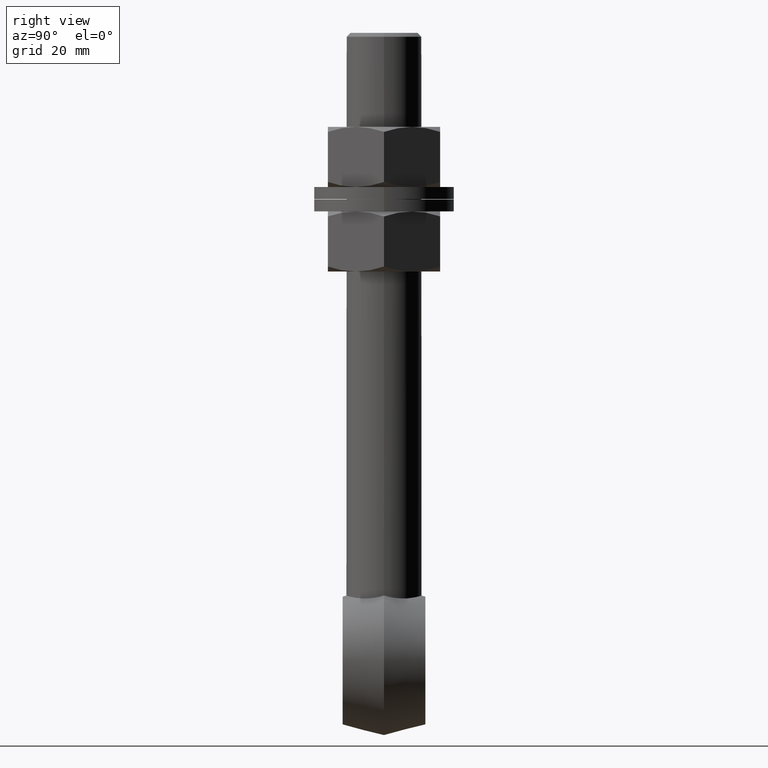
[diagram: clean part render]
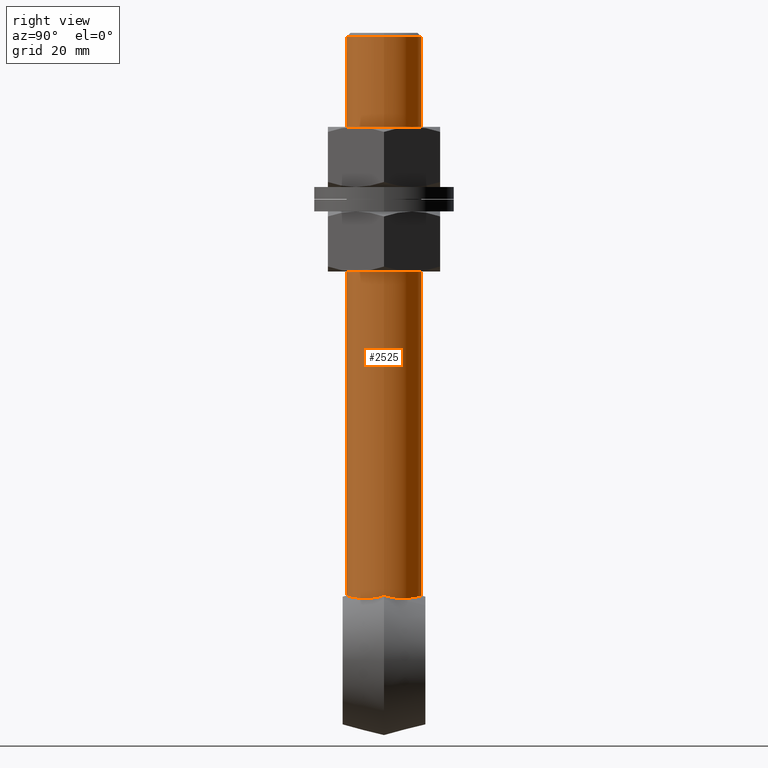
[diagram: same view with one face highlighted and labeled with its STEP entity id]
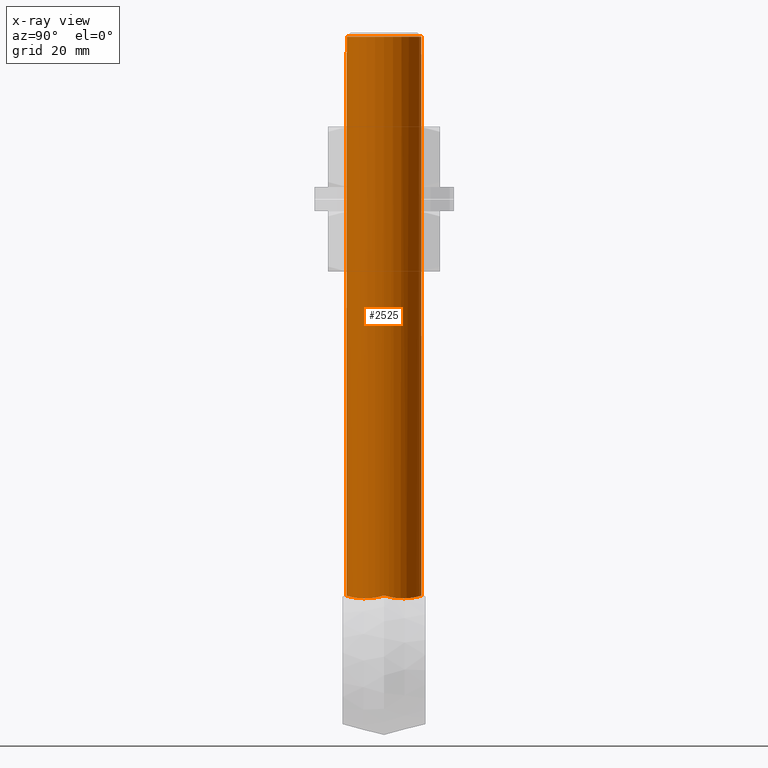
[diagram: x-ray of the same camera — body ghosted, the highlighted face saturated]
A machine part, right view. The second image highlights one B-rep face of the part: STEP entity #2525.
The next image is the same camera in x-ray: the body ghosted, the highlighted face saturated — about 0% of this face is hidden behind the body in this view.
In plain terms, the highlighted cylindrical surface (bore or boss wall) has radius 10 mm, axis along (0, 0, 1).
Its self-contained STEP definition (entity closure, byte-faithful):
#15 = DIRECTION ( 'NONE',  ( 0.000000000000000000, 0.000000000000000000, -1.000000000000000000 ) ) ;
#21 = CARTESIAN_POINT ( 'NONE',  ( 5.030207193969465251, 8.667681731379223820, -66.58782210933060242 ) ) ;
#149 = ORIENTED_EDGE ( 'NONE', *, *, #6767, .F. ) ;
#208 = CARTESIAN_POINT ( 'NONE',  ( -9.999999999999989342, 4.840303024962320483E-16, -66.17949192431122185 ) ) ;
#283 = CARTESIAN_POINT ( 'NONE',  ( -9.009806786077419360, -4.387856314192352336, -66.99471067820522308 ) ) ;
#307 = CYLINDRICAL_SURFACE ( 'NONE', #2823, 9.999999999999998224 ) ;
#382 = CARTESIAN_POINT ( 'NONE',  ( 10.00000000000000711, 0.000000000000000000, -66.17949192431123606 ) ) ;
#482 = CARTESIAN_POINT ( 'NONE',  ( -1.639107490482400564, 9.870174628639697190, -66.26666608361753674 ) ) ;
#554 = CARTESIAN_POINT ( 'NONE',  ( 8.703368358683860606, 4.969154911175263756, -67.00784871070699467 ) ) ;
#821 = CARTESIAN_POINT ( 'NONE',  ( -8.703416276451292788, -4.969129270617967720, -67.00786110837803733 ) ) ;
#869 = CARTESIAN_POINT ( 'NONE',  ( -9.999999999999985789, -0.6348035999347009239, -66.37940321302295388 ) ) ;
#891 = CARTESIAN_POINT ( 'NONE',  ( 1.320415377235109045, -9.934116265400342982, -66.24779882474476267 ) ) ;
#924 = CARTESIAN_POINT ( 'NONE',  ( -5.026540163907823100, 8.669587845681913763, -66.58734197203378358 ) ) ;
#939 = CARTESIAN_POINT ( 'NONE',  ( 9.379978053261543991, -3.481774409196121134, -66.91856950906478119 ) ) ;
#959 = CARTESIAN_POINT ( 'NONE',  ( 6.861814362142494517, -7.281629061594006913, -66.84247256873796061 ) ) ;
#972 = CARTESIAN_POINT ( 'NONE',  ( -4.451770471811700602, 8.978602354751371806, -66.51180842962719453 ) ) ;
#1108 = CIRCLE ( 'NONE', #1414, 9.999999999999998224 ) ;
#1398 = CARTESIAN_POINT ( 'NONE',  ( -1.315120860401320924, -9.918598933476685531, -66.25204106258026115 ) ) ;
#1414 = AXIS2_PLACEMENT_3D ( 'NONE', #4330, #15, #6408 ) ;
#1426 = CARTESIAN_POINT ( 'NONE',  ( 2.604065135909640283, -9.660656998349876901, -66.32816868278521838 ) ) ;
#1448 = CARTESIAN_POINT ( 'NONE',  ( 8.153152579458364357, -5.799688211069680577, -66.98374563760933142 ) ) ;
#1473 = CARTESIAN_POINT ( 'NONE',  ( 9.940081217375096756, -1.270371214191546860, -66.54541451619091674 ) ) ;
#1504 = CARTESIAN_POINT ( 'NONE',  ( -2.598302276428668289, 9.662134220516703564, -66.32773998071159838 ) ) ;
#1530 = CARTESIAN_POINT ( 'NONE',  ( -7.552057554879082701, 6.587593667447518619, -66.93102603144640739 ) ) ;
#1547 = CARTESIAN_POINT ( 'NONE',  ( 2.604065135909643836, 9.660656998349878677, -66.32816868278524680 ) ) ;
#1570 = CARTESIAN_POINT ( 'NONE',  ( 7.322217407229924646, 6.818485929619162000, -66.90151846914429257 ) ) ;
#1664 = CARTESIAN_POINT ( 'NONE',  ( 9.940081217375096756, 1.270371214191545972, -66.54541451619088832 ) ) ;
#1806 = B_SPLINE_CURVE_WITH_KNOTS ( 'NONE', 3,
 ( #3475, #869, #5603, #4562, #6623, #283, #821, #4539, #4587, #2961, #5072, #4082, #1890, #5095, #1911, #5652, #6145, #2986, #1398, #5118, #6703, #3547, #891, #4606, #1426, #5142, #1962, #5673, #6229, #4150, #4628, #2532, #959, #5168, #2556, #3618, #1448, #1979, #3055, #939, #6207, #4651, #5697, #1473, #6749, #382 ),
 .UNSPECIFIED., .F., .F.,
 ( 4, 2, 2, 2, 2, 2, 2, 2, 2, 2, 2, 2, 2, 2, 2, 2, 2, 2, 2, 2, 2, 2, 4 ),
 ( 2.068959819459525906E-07, 0.001970281942956898704, 0.003940356989931851663, 0.005910432036906804187, 0.007880507083881757580, 0.009850582130856710972, 0.01182065717783166263, 0.01280569470131914106, 0.01379073222480661949, 0.01477576974829409966, 0.01576080727178158156, 0.01773088231875653842, 0.01871591984224402205, 0.01970095736573150222, 0.02167103241270645908, 0.02265606993619393578, 0.02364110745968140900, 0.02462614498316888570, 0.02561118250665636240, 0.02758125755363131579, 0.02856629507711879248, 0.02955133260060626918, 0.03152140764758122604 ),
 .UNSPECIFIED. ) ;
#1887 = FACE_OUTER_BOUND ( 'NONE', #3572, .T. ) ;
#1890 = CARTESIAN_POINT ( 'NONE',  ( -4.451770471811701491, -8.978602354751371806, -66.51180842962718032 ) ) ;
#1911 = CARTESIAN_POINT ( 'NONE',  ( -3.227106875408471076, -9.470680737395053228, -66.38160066672091375 ) ) ;
#1962 = CARTESIAN_POINT ( 'NONE',  ( 3.548118843663766953, -9.355118314788976264, -66.41327980910449469 ) ) ;
#1979 = CARTESIAN_POINT ( 'NONE',  ( 8.703368358683862382, -4.969154911175262868, -67.00784871070700888 ) ) ;
#2011 = CARTESIAN_POINT ( 'NONE',  ( 0.6671754992828612396, 9.999778545406007524, -66.22734054111275270 ) ) ;
#2045 = DIRECTION ( 'NONE',  ( 1.000000000000000000, 0.000000000000000000, 0.000000000000000000 ) ) ;
#2054 = CARTESIAN_POINT ( 'NONE',  ( -1.315120860401322478, 9.918598933476687307, -66.25204106258028958 ) ) ;
#2079 = CARTESIAN_POINT ( 'NONE',  ( 4.455410200496841000, 8.976573065215756486, -66.51229813072741592 ) ) ;
#2127 = CARTESIAN_POINT ( 'NONE',  ( 9.676767397169985685, 2.543261836825748023, -66.79371139632957011 ) ) ;
#2151 = CARTESIAN_POINT ( 'NONE',  ( 7.541143778264462583, 6.575633526374909721, -66.92737885104659767 ) ) ;
#2195 = CARTESIAN_POINT ( 'NONE',  ( 6.114311408671198933, 7.919776692471264035, -66.73858635537166606 ) ) ;
#2344 = ORIENTED_EDGE ( 'NONE', *, *, #6021, .T. ) ;
#2525 = ADVANCED_FACE ( 'NONE', ( #1887, #3639 ), #307, .T. ) ;
#2532 = CARTESIAN_POINT ( 'NONE',  ( 6.620337797070874331, -7.501919375299405779, -66.80928247804335740 ) ) ;
#2556 = CARTESIAN_POINT ( 'NONE',  ( 7.541143778264459918, -6.575633526374908833, -66.92737885104658346 ) ) ;
#2823 = AXIS2_PLACEMENT_3D ( 'NONE', #4175, #4694, #2045 ) ;
#2961 = CARTESIAN_POINT ( 'NONE',  ( -6.627173734391593740, -7.517348730356412823, -66.81234919190687549 ) ) ;
#2986 = CARTESIAN_POINT ( 'NONE',  ( -1.639107490482401230, -9.870174628639698966, -66.26666608361753674 ) ) ;
#3055 = CARTESIAN_POINT ( 'NONE',  ( 9.009074844332507936, -4.389024460403426531, -66.99467858775705054 ) ) ;
#3067 = CARTESIAN_POINT ( 'NONE',  ( -3.227106875408471520, 9.470680737395051452, -66.38160066672088533 ) ) ;
#3113 = CARTESIAN_POINT ( 'NONE',  ( -9.505604731175528954, 3.173858858093383528, -66.89260771451357357 ) ) ;
#3132 = CARTESIAN_POINT ( 'NONE',  ( -8.703416276451296341, 4.969129270617970384, -67.00786110837805154 ) ) ;
#3147 = CARTESIAN_POINT ( 'NONE',  ( 10.00000000000000711, 0.000000000000000000, -66.17949192431123606 ) ) ;
#3153 = CARTESIAN_POINT ( 'NONE',  ( -6.627173734391589299, 7.517348730356412823, -66.81234919190686128 ) ) ;
#3164 = ORIENTED_EDGE ( 'NONE', *, *, #5215, .T. ) ;
#3175 = CARTESIAN_POINT ( 'NONE',  ( 9.379978053261543991, 3.481774409196122466, -66.91856950906480961 ) ) ;
#3404 = CARTESIAN_POINT ( 'NONE',  ( 10.00000000000000711, 0.000000000000000000, 82.50000000000000000 ) ) ;
#3475 = CARTESIAN_POINT ( 'NONE',  ( -9.999999999999989342, 4.840303024962320483E-16, -66.17949192431122185 ) ) ;
#3547 = CARTESIAN_POINT ( 'NONE',  ( 0.6671754992828610176, -9.999778545406005748, -66.22734054111272428 ) ) ;
#3572 = EDGE_LOOP ( 'NONE', ( #2344 ) ) ;
#3603 = CARTESIAN_POINT ( 'NONE',  ( -9.999999999999985789, 0.6348035999347013680, -66.37940321302293967 ) ) ;
#3618 = CARTESIAN_POINT ( 'NONE',  ( 7.956242606182620136, -6.066795640962935998, -66.96847557188976907 ) ) ;
#3639 = FACE_OUTER_BOUND ( 'NONE', #3822, .T. ) ;
#3665 = CARTESIAN_POINT ( 'NONE',  ( -9.009806786077419360, 4.387856314192355001, -66.99471067820522308 ) ) ;
#3712 = CARTESIAN_POINT ( 'NONE',  ( 9.755019156617573017, 2.223592962187393329, -66.73842425688718549 ) ) ;
#3758 = CARTESIAN_POINT ( 'NONE',  ( 6.620337797070874331, 7.501919375299403114, -66.80928247804335740 ) ) ;
#3822 = EDGE_LOOP ( 'NONE', ( #149, #3164 ) ) ;
#4082 = CARTESIAN_POINT ( 'NONE',  ( -5.026540163907821324, -8.669587845681910210, -66.58734197203376937 ) ) ;
#4118 = CARTESIAN_POINT ( 'NONE',  ( -6.113050587191366958, 7.940936465670366040, -66.73744052423292317 ) ) ;
#4150 = CARTESIAN_POINT ( 'NONE',  ( 5.848344541794114448, -8.118176449988871113, -66.70088552193209352 ) ) ;
#4175 = CARTESIAN_POINT ( 'NONE',  ( 8.025394431364731758E-15, 0.000000000000000000, -103.5019999999999953 ) ) ;
#4202 = CARTESIAN_POINT ( 'NONE',  ( 1.320415377235108600, 9.934116265400342982, -66.24779882474476267 ) ) ;
#4272 = CARTESIAN_POINT ( 'NONE',  ( 10.00000000000000711, 0.000000000000000000, -66.17949192431123606 ) ) ;
#4288 = CARTESIAN_POINT ( 'NONE',  ( 10.00000000000000711, 0.6351725604654686608, -66.37951940545661955 ) ) ;
#4312 = CARTESIAN_POINT ( 'NONE',  ( 7.956242606182621913, 6.066795640962937775, -66.96847557188978328 ) ) ;
#4330 = CARTESIAN_POINT ( 'NONE',  ( 8.025394431364731758E-15, 0.000000000000000000, 82.50000000000000000 ) ) ;
#4539 = CARTESIAN_POINT ( 'NONE',  ( -7.969270702384871008, -6.077205366072451653, -66.97568009636033537 ) ) ;
#4562 = CARTESIAN_POINT ( 'NONE',  ( -9.694836938361417467, -2.534965818873927468, -66.80162771897234109 ) ) ;
#4587 = CARTESIAN_POINT ( 'NONE',  ( -7.552057554879087142, -6.587593667447520396, -66.93102603144643581 ) ) ;
#4606 = CARTESIAN_POINT ( 'NONE',  ( 2.285066148723426949, -9.740945199604137628, -66.30480588651649043 ) ) ;
#4628 = CARTESIAN_POINT ( 'NONE',  ( 6.114311408671198045, -7.919776692471258706, -66.73858635537163764 ) ) ;
#4639 = CARTESIAN_POINT ( 'NONE',  ( -0.6606217280623480903, 9.983572838069523669, -66.23232541136974305 ) ) ;
#4651 = CARTESIAN_POINT ( 'NONE',  ( 9.676767397169985685, -2.543261836825747579, -66.79371139632957011 ) ) ;
#4661 = CARTESIAN_POINT ( 'NONE',  ( -9.940139474985739909, 1.268677335695095332, -66.54491431101273236 ) ) ;
#4684 = CARTESIAN_POINT ( 'NONE',  ( -3.539973602093853700, 9.358257158311532820, -66.41243786794383652 ) ) ;
#4694 = DIRECTION ( 'NONE',  ( 0.000000000000000000, 0.000000000000000000, 1.000000000000000000 ) ) ;
#4722 = CARTESIAN_POINT ( 'NONE',  ( 2.285066148723427837, 9.740945199604139404, -66.30480588651650464 ) ) ;
#5072 = CARTESIAN_POINT ( 'NONE',  ( -6.113050587191366070, -7.940936465670364264, -66.73744052423290896 ) ) ;
#5095 = CARTESIAN_POINT ( 'NONE',  ( -3.539973602093852367, -9.358257158311531043, -66.41243786794382231 ) ) ;
#5118 = CARTESIAN_POINT ( 'NONE',  ( -0.6606217280623479793, -9.983572838069525446, -66.23232541136975726 ) ) ;
#5142 = CARTESIAN_POINT ( 'NONE',  ( 3.236880436023269247, -9.467420657957287489, -66.38250436119778897 ) ) ;
#5168 = CARTESIAN_POINT ( 'NONE',  ( 7.322217407229925534, -6.818485929619161112, -66.90151846914426415 ) ) ;
#5198 = CARTESIAN_POINT ( 'NONE',  ( -7.969270702384867455, 6.077205366072448101, -66.97568009636032116 ) ) ;
#5215 = EDGE_CURVE ( 'NONE', #5571, #5911, #1806, .T. ) ;
#5245 = CARTESIAN_POINT ( 'NONE',  ( -2.280698234392222634, 9.741942112784208518, -66.30451432862818706 ) ) ;
#5267 = CARTESIAN_POINT ( 'NONE',  ( 3.236880436023271468, 9.467420657957285712, -66.38250436119783160 ) ) ;
#5293 = CARTESIAN_POINT ( 'NONE',  ( 8.153152579458366134, 5.799688211069681465, -66.98374563760937406 ) ) ;
#5338 = CARTESIAN_POINT ( 'NONE',  ( 9.488900497698839587, 3.173133368510831165, -66.88382834301494029 ) ) ;
#5359 = CARTESIAN_POINT ( 'NONE',  ( 6.861814362142494517, 7.281629061594005137, -66.84247256873794640 ) ) ;
#5571 = VERTEX_POINT ( 'NONE', #208 ) ;
#5603 = CARTESIAN_POINT ( 'NONE',  ( -9.940139474985739909, -1.268677335695094444, -66.54491431101273236 ) ) ;
#5652 = CARTESIAN_POINT ( 'NONE',  ( -2.598302276428667845, -9.662134220516707117, -66.32773998071161259 ) ) ;
#5673 = CARTESIAN_POINT ( 'NONE',  ( 4.455410200496838335, -8.976573065215752933, -66.51229813072740171 ) ) ;
#5697 = CARTESIAN_POINT ( 'NONE',  ( 9.755019156617571241, -2.223592962187393329, -66.73842425688717128 ) ) ;
#5709 = CARTESIAN_POINT ( 'NONE',  ( -9.999999999999989342, 4.840303024962320483E-16, -66.17949192431122185 ) ) ;
#5774 = CARTESIAN_POINT ( 'NONE',  ( -0.3285963743000061554, 10.00010989683604734, -66.22723907465656623 ) ) ;
#5791 = CARTESIAN_POINT ( 'NONE',  ( 3.548118843663766953, 9.355118314788976264, -66.41327980910449469 ) ) ;
#5810 = CARTESIAN_POINT ( 'NONE',  ( 9.009074844332509713, 4.389024460403423866, -66.99467858775707896 ) ) ;
#5911 = VERTEX_POINT ( 'NONE', #3147 ) ;
#5931 = B_SPLINE_CURVE_WITH_KNOTS ( 'NONE', 3,
 ( #5709, #3603, #4661, #6218, #3113, #3665, #3132, #5198, #1530, #3153, #4118, #924, #972, #4684, #3067, #1504, #5245, #482, #2054, #4639, #5774, #2011, #4202, #4722, #1547, #5267, #5791, #2079, #21, #6350, #2195, #3758, #5359, #1570, #2151, #4312, #5293, #554, #5810, #3175, #5338, #2127, #3712, #1664, #4288, #4272 ),
 .UNSPECIFIED., .F., .F.,
 ( 4, 2, 2, 2, 2, 2, 2, 2, 2, 2, 2, 2, 2, 2, 2, 2, 2, 2, 2, 2, 2, 2, 4 ),
 ( 2.068959819470685830E-07, 0.001970281942956898704, 0.003940356989931850795, 0.005910432036906803320, 0.007880507083881755845, 0.009850582130856709237, 0.01182065717783166436, 0.01280569470131914279, 0.01379073222480662296, 0.01477576974829410139, 0.01576080727178158156, 0.01773088231875653842, 0.01871591984224401858, 0.01970095736573149875, 0.02167103241270645908, 0.02265606993619393231, 0.02364110745968140900, 0.02462614498316888223, 0.02561118250665635893, 0.02758125755363131579, 0.02856629507711878901, 0.02955133260060626571, 0.03152140764758122604 ),
 .UNSPECIFIED. ) ;
#6021 = EDGE_CURVE ( 'NONE', #6481, #6481, #1108, .T. ) ;
#6145 = CARTESIAN_POINT ( 'NONE',  ( -2.280698234392223078, -9.741942112784210295, -66.30451432862818706 ) ) ;
#6207 = CARTESIAN_POINT ( 'NONE',  ( 9.488900497698839587, -3.173133368510832941, -66.88382834301492608 ) ) ;
#6218 = CARTESIAN_POINT ( 'NONE',  ( -9.694836938361419243, 2.534965818873930576, -66.80162771897235530 ) ) ;
#6229 = CARTESIAN_POINT ( 'NONE',  ( 5.030207193969467916, -8.667681731379223820, -66.58782210933060242 ) ) ;
#6350 = CARTESIAN_POINT ( 'NONE',  ( 5.848344541794116225, 8.118176449988871113, -66.70088552193210774 ) ) ;
#6408 = DIRECTION ( 'NONE',  ( 1.000000000000000000, 0.000000000000000000, 0.000000000000000000 ) ) ;
#6481 = VERTEX_POINT ( 'NONE', #3404 ) ;
#6623 = CARTESIAN_POINT ( 'NONE',  ( -9.505604731175527178, -3.173858858093380420, -66.89260771451355936 ) ) ;
#6703 = CARTESIAN_POINT ( 'NONE',  ( -0.3285963743000062109, -10.00010989683604734, -66.22723907465655202 ) ) ;
#6749 = CARTESIAN_POINT ( 'NONE',  ( 10.00000000000001066, -0.6351725604654645529, -66.37951940545664797 ) ) ;
#6767 = EDGE_CURVE ( 'NONE', #5571, #5911, #5931, .T. ) ;